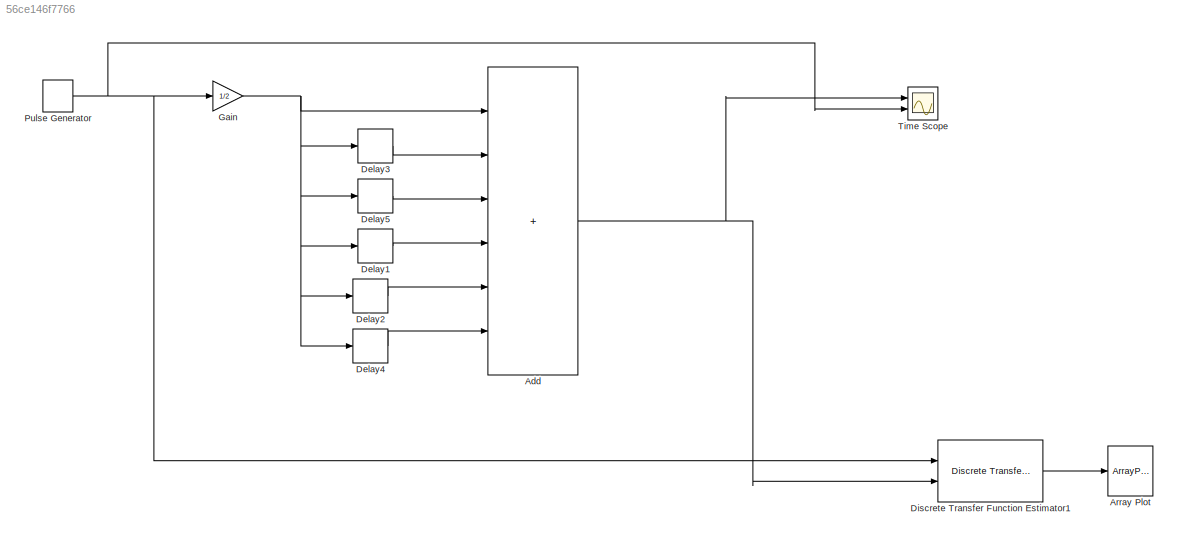
MODEL slx_56ce146f7766
KIND model
CONFIG AbsTol = auto
CONFIG EnableMultiTasking = off
CONFIG FixedStep = auto
CONFIG MaxStep = auto
CONFIG MinStep = auto
CONFIG RelTol = 1e-3
CONFIG SampleTimeConstraint = Unconstrained
CONFIG Solver = VariableStepAuto
CONFIG SolverName = VariableStepAuto
CONFIG StartTime = 0.0
CONFIG StopTime = 14
BLOCK [Sum] Add
  IconShape = rectangular
  Inputs = ++++++
  Ports = [6, 1]
BLOCK [ArrayPlot] Array Plot
  Commented = on
  Ports = [1]
  ScopeSpecificationString = dsp.scopes.ArrayPlotBlockSpecification('CurrentConfiguration', extmgr.ConfigurationSet(extmgr.Configuration('Core','General UI',true),extmgr.Configuration('Core','Source UI',true),extmgr.Configuration('Sources','WiredSimulink',true),extmgr.Configuration('Sources','SimulinkEvent',false),extmgr.Configuration('Sources','Simulink',false),extmgr.Configuration('Sources','SPTool',false),extmgr.Configurat...<+3100ch>
BLOCK [Delay] Delay1
  Commented = on
  DelayLength = 3
  InitialCondition = 0
  InputPortMap = u0
  InputProcessing = Columns as channels (frame based)
  Ports = [1, 1]
BLOCK [Delay] Delay2
  Commented = on
  DelayLength = 4
  InitialCondition = 0
  InputPortMap = u0
  InputProcessing = Columns as channels (frame based)
  Ports = [1, 1]
BLOCK [Delay] Delay3
  DelayLength = 1
  InitialCondition = 0
  InputPortMap = u0
  Ports = [1, 1]
BLOCK [Delay] Delay4
  Commented = on
  DelayLength = 5
  InitialCondition = 0
  InputPortMap = u0
  InputProcessing = Columns as channels (frame based)
  Ports = [1, 1]
BLOCK [Delay] Delay5
  Commented = on
  InitialCondition = 0
  InputPortMap = u0
  InputProcessing = Columns as channels (frame based)
  Ports = [1, 1]
BLOCK [Reference] Discrete Transfer Function Estimator1  REF=dspspect3/Discrete
Transfer Function
Estimator
  Commented = on
  Ports = [2, 1]
  SourceBlock = dspspect3/Discrete\nTransfer Function\nEstimator
  SourceProductBaseCode = DS
  SourceType = Discrete Transfer Function Estimator
BLOCK [Gain] Gain
  Gain = 1/2
BLOCK [DiscretePulseGenerator] Pulse Generator
  Period = 24*6
  Ports = [0, 1]
  SampleTime = 1/24
BLOCK [Scope] Time Scope
  DefaultConfigurationName = spbscopes.TimeScopeBlockCfg
  Floating = off
  NumInputPorts = 2
  Ports = [2]
  ScopeSpecificationString = spbscopes.TimeScopeBlockCfg('CurrentConfiguration', extmgr.ConfigurationSet(extmgr.Configuration('Core','General UI',true,'FigureColor',[0.156862745098039 0.156862745098039 0.156862745098039]),extmgr.Configuration('Core','Source UI',true),extmgr.Configuration('Sources','WiredSimulink',true),extmgr.Configuration('Visuals','Time Domain',true,'DisplayPropertyDefaults',struct('MinYLimReal','-0.125','M...<+1426ch>
  UserDataPersistent = on
NET Add:1 -> Discrete Transfer Function Estimator1:2, Time Scope:1
LINE Delay1:1 -> Add:4
LINE Delay2:1 -> Add:5
LINE Delay3:1 -> Add:2
LINE Delay4:1 -> Add:6
LINE Delay5:1 -> Add:3
LINE Discrete Transfer Function Estimator1:1 -> Array Plot:1
NET Gain:1 -> Add:1, Delay1:1, Delay2:1, Delay3:1, Delay4:1, Delay5:1
NET Pulse Generator:1 -> Discrete Transfer Function Estimator1:1, Gain:1, Time Scope:2
note: NET lines group one-source signal fan-out (src -> all destinations, sorted); 1:1 wires keep LINE
